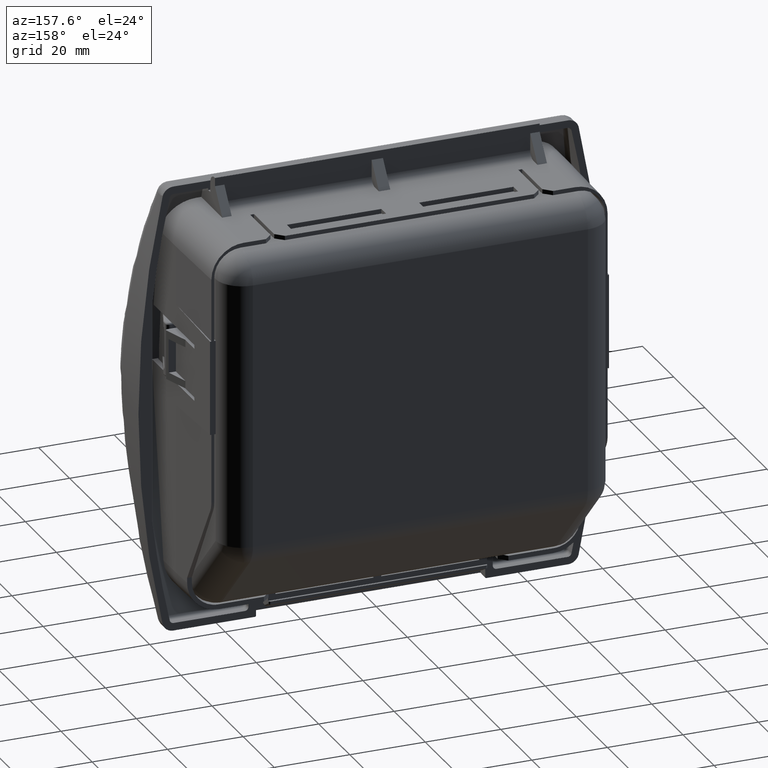
[diagram: clean part render]
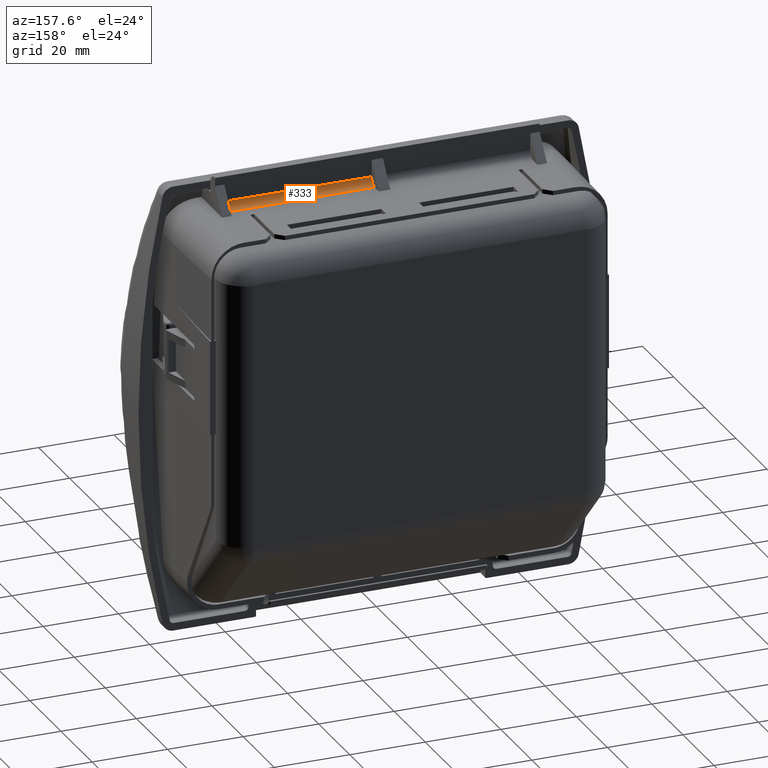
[diagram: same view with one face highlighted and labeled with its STEP entity id]
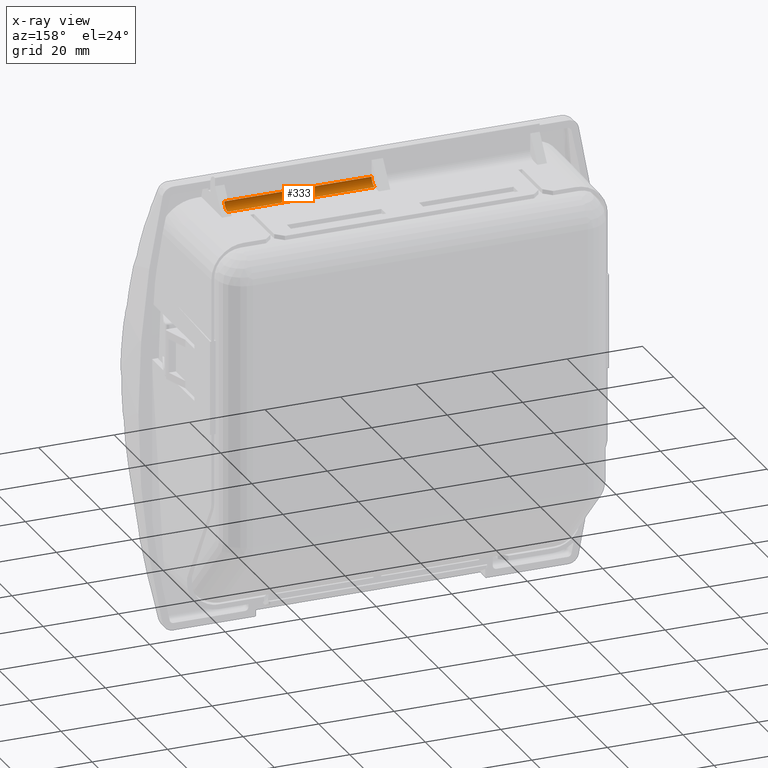
[diagram: x-ray of the same camera — body ghosted, the highlighted face saturated]
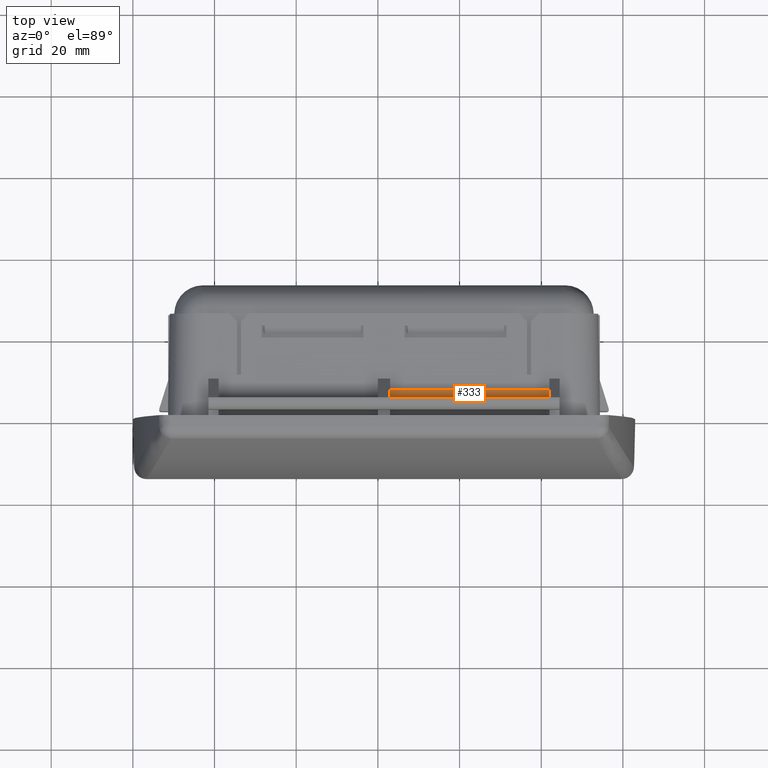
[diagram: same view with one face highlighted and labeled with its STEP entity id]
A machine part, auxiliary view. The second image highlights one B-rep face of the part: STEP entity #333.
The next image is the same camera in x-ray: the body ghosted, the highlighted face saturated — about 0% of this face is hidden behind the body in this view.
A second angle (top view) of the same face is appended — the face is thin or edge-on in the first view.
In plain terms, the highlighted cylindrical surface (edge-blend (fillet) strip) has radius 2 mm, axis along (-1, 0, -0).
Its self-contained STEP definition (entity closure, byte-faithful):
#333=ADVANCED_FACE('',(#2698),#2697,.F.);
#2697=CYLINDRICAL_SURFACE('',#10388,2.00000000000E+00);
#2698=FACE_OUTER_BOUND('',#10389,.T.);
#10385=CARTESIAN_POINT('',(-1.97000344491E+02,6.30000000001E+00,5.52999999995E+01));
#10386=DIRECTION('',(-1.00000000000E+00,2.84217092940E-14,-3.55534435551E-14));
#10387=DIRECTION('',(2.84217094304E-14,1.00000000000E+00,-3.83659681802E-09));
#10388=AXIS2_PLACEMENT_3D('',#10385,#10386,#10387);
#10389=EDGE_LOOP('',(#17221,#17222,#17223,#17224));
#17221=ORIENTED_EDGE('',*,*,#20505,.T.);
#17222=ORIENTED_EDGE('',*,*,#20506,.T.);
#17223=ORIENTED_EDGE('',*,*,#20507,.T.);
#17224=ORIENTED_EDGE('',*,*,#20493,.T.);
#20493=EDGE_CURVE('',#25758,#25751,#25759,.T.);
#20505=EDGE_CURVE('',#25751,#25834,#25835,.T.);
#20506=EDGE_CURVE('',#25834,#25841,#25842,.T.);
#20507=EDGE_CURVE('',#25841,#25758,#25848,.T.);
#25751=VERTEX_POINT('',#36359);
#25758=VERTEX_POINT('',#36363);
#25759=LINE('',#36364,#36365);
#25834=VERTEX_POINT('',#36404);
#25835=CIRCLE('',#36408,2.00000000000E+00);
#25841=VERTEX_POINT('',#36409);
#25842=LINE('',#36410,#36411);
#25848=CIRCLE('',#36416,2.00000000000E+00);
#36359=CARTESIAN_POINT('',(-1.58000344491E+02,4.30000000000E+00,5.52999999995E+01));
#36363=CARTESIAN_POINT('',(-1.97000344491E+02,4.30000000000E+00,5.52999999995E+01));
#36364=CARTESIAN_POINT('',(-1.97000344491E+02,4.30000000000E+00,5.52999999995E+01));
#36365=VECTOR('',#36366,3.90000000000E+01);
#36366=DIRECTION('',(1.00000000000E+00,0.00000000000E+00,0.00000000000E+00));
#36404=CARTESIAN_POINT('',(-1.58000344491E+02,6.30000000001E+00,5.32999999995E+01));
#36405=CARTESIAN_POINT('',(-1.58000344491E+02,6.30000000001E+00,5.52999999995E+01));
#36406=DIRECTION('',(1.00000000000E+00,-2.84217094304E-14,-5.02429586800E-15));
#36407=DIRECTION('',(2.84217094304E-14,1.00000000000E+00,6.91713353262E-12));
#36408=AXIS2_PLACEMENT_3D('',#36405,#36406,#36407);
#36409=CARTESIAN_POINT('',(-1.97000344491E+02,6.30000000001E+00,5.32999999995E+01));
#36410=CARTESIAN_POINT('',(-1.58000344491E+02,6.30000000001E+00,5.32999999995E+01));
#36411=VECTOR('',#36412,3.90000000000E+01);
#36412=DIRECTION('',(-1.00000000000E+00,0.00000000000E+00,0.00000000000E+00));
#36413=CARTESIAN_POINT('',(-1.97000344491E+02,6.30000000001E+00,5.52999999995E+01));
#36414=DIRECTION('',(-1.00000000000E+00,-5.02429586781E-15,2.84217094304E-14));
#36415=DIRECTION('',(2.84217094304E-14,1.33226762955E-14,1.00000000000E+00));
#36416=AXIS2_PLACEMENT_3D('',#36413,#36414,#36415);